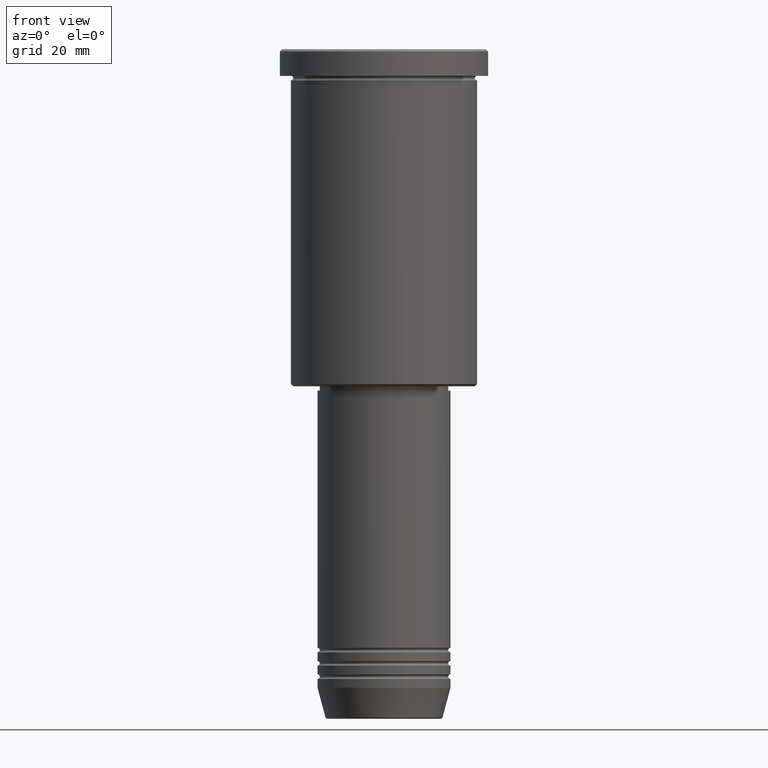
[diagram: clean part render]
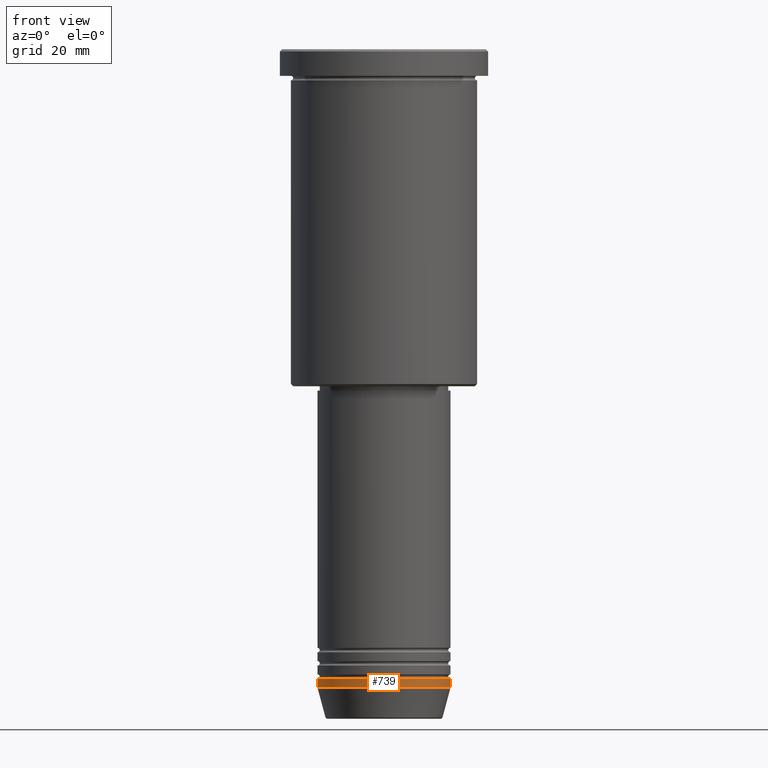
[diagram: same view with one face highlighted and labeled with its STEP entity id]
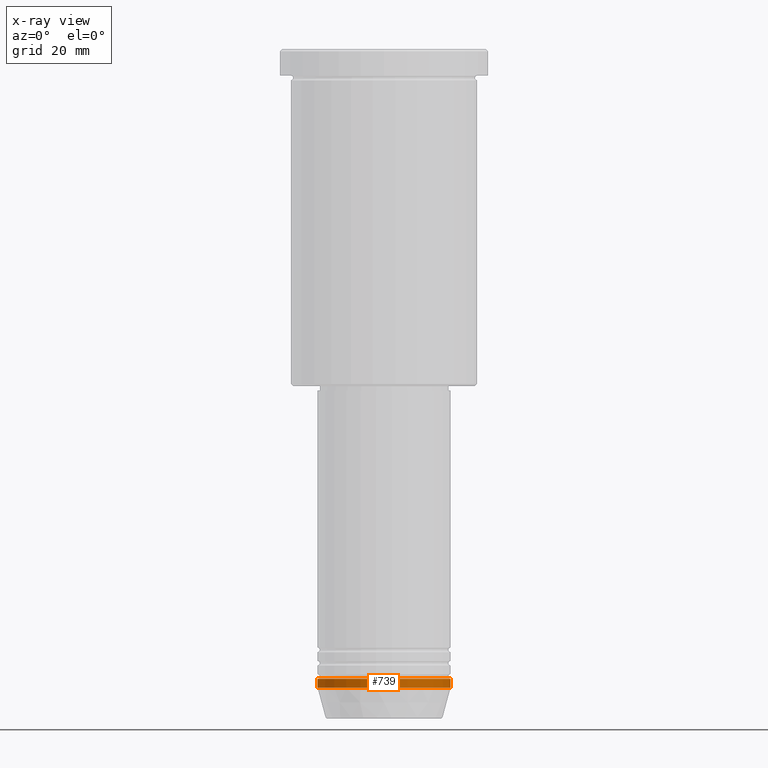
[diagram: x-ray of the same camera — body ghosted, the highlighted face saturated]
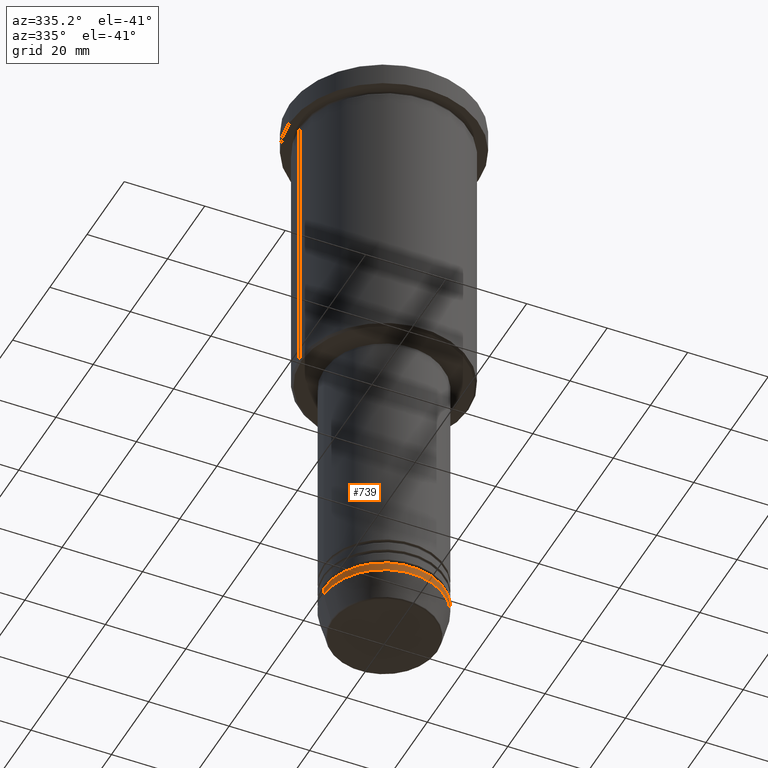
[diagram: same view with one face highlighted and labeled with its STEP entity id]
A machine part, front view. The second image highlights one B-rep face of the part: STEP entity #739.
The next image is the same camera in x-ray: the body ghosted, the highlighted face saturated — about 0% of this face is hidden behind the body in this view.
A second angle (auxiliary view) of the same face is appended — the face is thin or edge-on in the first view.
In plain terms, the highlighted cylindrical surface (partial cylindrical patch) has radius 15 mm, axis along (-0, -0, 1).
Its self-contained STEP definition (entity closure, byte-faithful):
#68 = AXIS2_PLACEMENT_3D ( 'NONE', #1154, #780, #1160 ) ;
#87 = VECTOR ( 'NONE', #1174, 1000.000000000000000 ) ;
#142 = VECTOR ( 'NONE', #828, 1000.000000000000000 ) ;
#157 = VERTEX_POINT ( 'NONE', #190 ) ;
#185 = VERTEX_POINT ( 'NONE', #206 ) ;
#190 = CARTESIAN_POINT ( 'NONE',  ( -15.00000000000000000, 1.836970198721029589E-15, -144.0000000000000000 ) ) ;
#206 = CARTESIAN_POINT ( 'NONE',  ( -15.00000000000000000, 1.836970198721029589E-15, -142.0000000000000000 ) ) ;
#229 = EDGE_CURVE ( 'NONE', #185, #445, #753, .T. ) ;
#243 = EDGE_CURVE ( 'NONE', #922, #445, #998, .T. ) ;
#255 = LINE ( 'NONE', #1162, #87 ) ;
#270 = FACE_OUTER_BOUND ( 'NONE', #310, .T. ) ;
#285 = ORIENTED_EDGE ( 'NONE', *, *, #672, .T. ) ;
#310 = EDGE_LOOP ( 'NONE', ( #530, #285, #655, #851 ) ) ;
#345 = CYLINDRICAL_SURFACE ( 'NONE', #68, 15.00000000000000000 ) ;
#427 = CARTESIAN_POINT ( 'NONE',  ( 0.000000000000000000, 0.000000000000000000, -144.0000000000000000 ) ) ;
#445 = VERTEX_POINT ( 'NONE', #734 ) ;
#478 = CARTESIAN_POINT ( 'NONE',  ( 15.00000000000000000, 0.000000000000000000, 0.000000000000000000 ) ) ;
#497 = DIRECTION ( 'NONE',  ( 1.000000000000000000, 0.000000000000000000, 0.000000000000000000 ) ) ;
#530 = ORIENTED_EDGE ( 'NONE', *, *, #786, .F. ) ;
#532 = CIRCLE ( 'NONE', #985, 15.00000000000000000 ) ;
#655 = ORIENTED_EDGE ( 'NONE', *, *, #243, .T. ) ;
#672 = EDGE_CURVE ( 'NONE', #157, #922, #532, .T. ) ;
#727 = CARTESIAN_POINT ( 'NONE',  ( 15.00000000000000000, 0.000000000000000000, -144.0000000000000000 ) ) ;
#734 = CARTESIAN_POINT ( 'NONE',  ( 15.00000000000000000, 0.000000000000000000, -142.0000000000000000 ) ) ;
#739 = ADVANCED_FACE ( 'NONE', ( #270 ), #345, .T. ) ;
#753 = CIRCLE ( 'NONE', #788, 15.00000000000000000 ) ;
#760 = DIRECTION ( 'NONE',  ( -0.000000000000000000, -0.000000000000000000, 1.000000000000000000 ) ) ;
#761 = DIRECTION ( 'NONE',  ( 1.000000000000000000, 0.000000000000000000, 0.000000000000000000 ) ) ;
#780 = DIRECTION ( 'NONE',  ( -0.000000000000000000, -0.000000000000000000, 1.000000000000000000 ) ) ;
#786 = EDGE_CURVE ( 'NONE', #157, #185, #255, .T. ) ;
#788 = AXIS2_PLACEMENT_3D ( 'NONE', #1035, #760, #497 ) ;
#828 = DIRECTION ( 'NONE',  ( -0.000000000000000000, -0.000000000000000000, 1.000000000000000000 ) ) ;
#851 = ORIENTED_EDGE ( 'NONE', *, *, #229, .F. ) ;
#922 = VERTEX_POINT ( 'NONE', #727 ) ;
#956 = DIRECTION ( 'NONE',  ( -0.000000000000000000, -0.000000000000000000, 1.000000000000000000 ) ) ;
#985 = AXIS2_PLACEMENT_3D ( 'NONE', #427, #956, #761 ) ;
#998 = LINE ( 'NONE', #478, #142 ) ;
#1035 = CARTESIAN_POINT ( 'NONE',  ( 0.000000000000000000, 0.000000000000000000, -142.0000000000000000 ) ) ;
#1154 = CARTESIAN_POINT ( 'NONE',  ( 0.000000000000000000, 0.000000000000000000, 0.000000000000000000 ) ) ;
#1160 = DIRECTION ( 'NONE',  ( 1.000000000000000000, 0.000000000000000000, 0.000000000000000000 ) ) ;
#1162 = CARTESIAN_POINT ( 'NONE',  ( -15.00000000000000000, 1.836970198721029589E-15, 0.000000000000000000 ) ) ;
#1174 = DIRECTION ( 'NONE',  ( -0.000000000000000000, -0.000000000000000000, 1.000000000000000000 ) ) ;